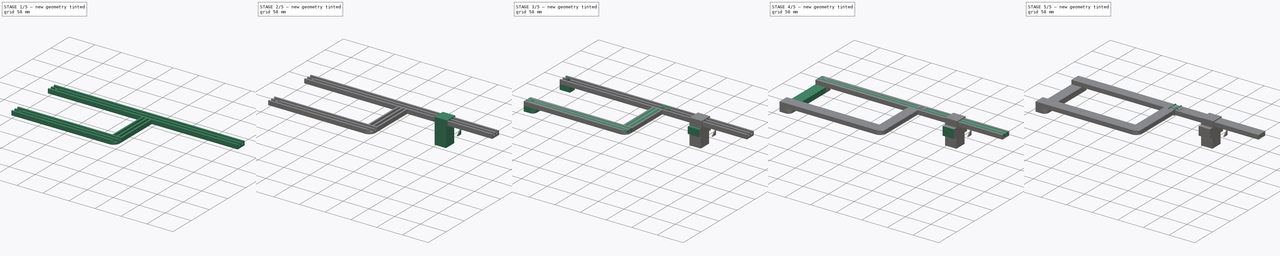
[diagram: build sequence overview — one tinted view per stage of 5, left to right]
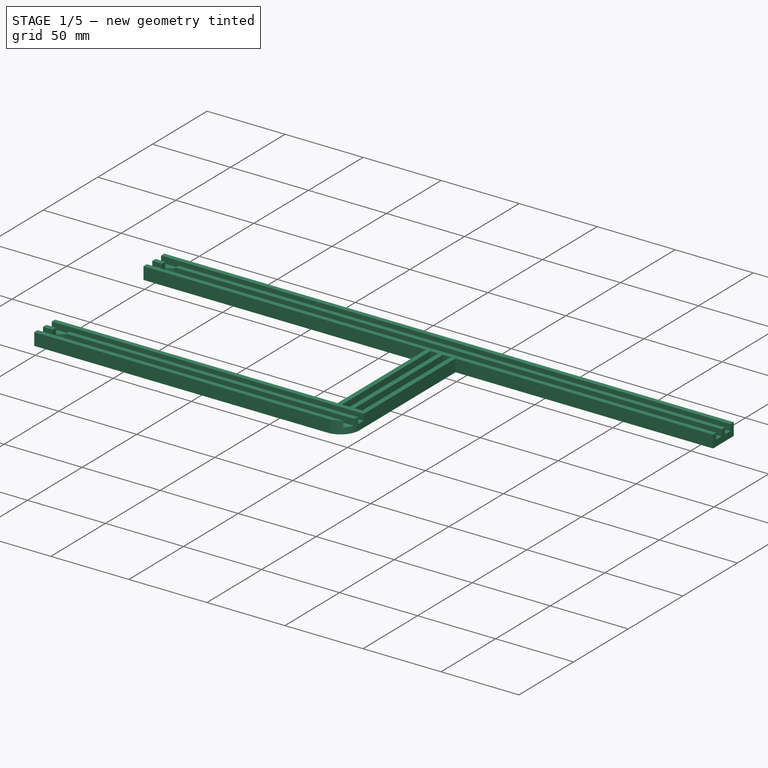
[diagram: stage 1 of 5 — iso view after this stage's code; geometry added in this stage tinted green]
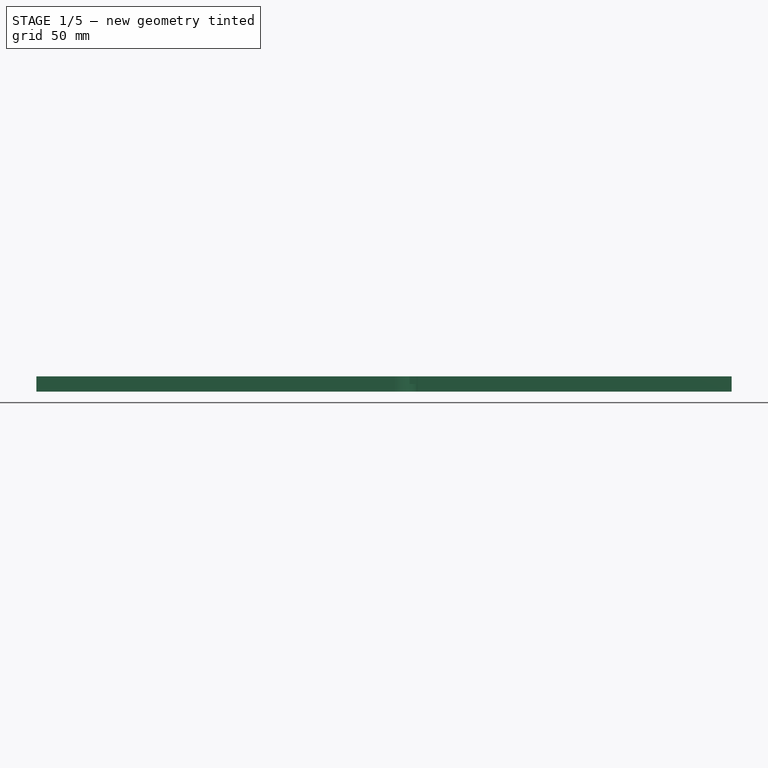
[diagram: stage 1 of 5 — front view after this stage's code; geometry added in this stage tinted green]
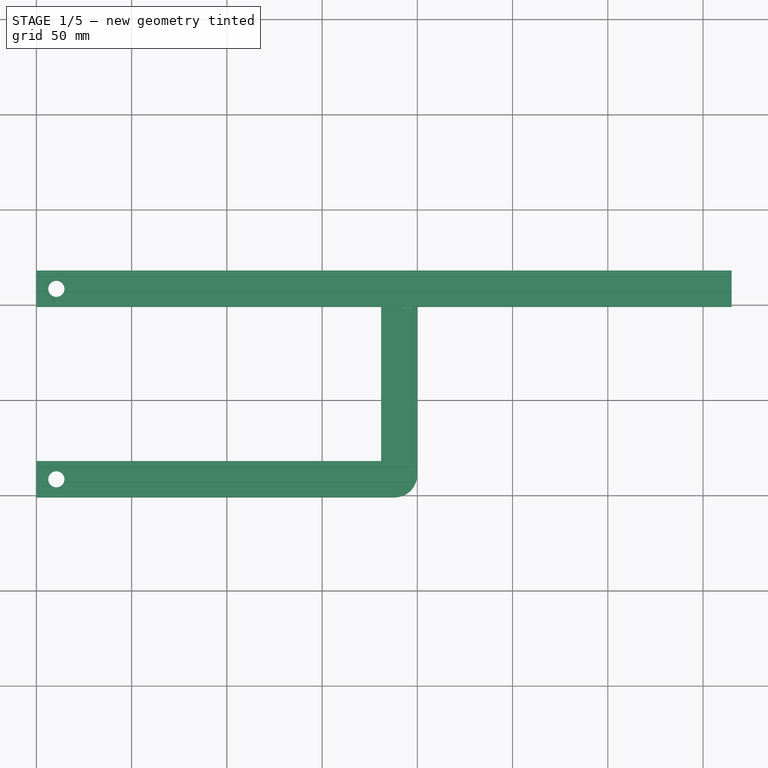
[diagram: stage 1 of 5 — top view after this stage's code; geometry added in this stage tinted green]
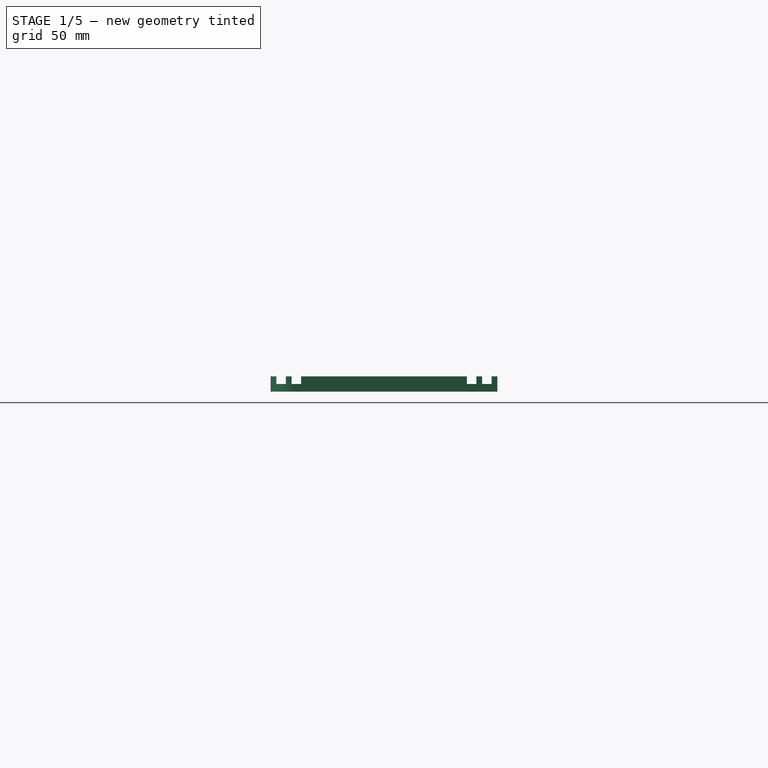
[diagram: stage 1 of 5 — right view after this stage's code; geometry added in this stage tinted green]
FCSTD DOCUMENT  (FreeCAD 0.18R16146 (Git))
Label: Webcam VESA Mount
License: All rights reserved
LicenseURL: http://en.wikipedia.org/wiki/All_rights_reserved
objects: Part::FeaturePython×78, Part::Box×45, Part::Cylinder×28, Part::Feature×26, App::DocumentObjectGroup×15, Part::Fillet×5, Part::Cut×5, Part::MultiFuse×4, Sketcher::SketchObject×4, Part::Chamfer×4, Part::Face×3, Part::Fuse×1
note: 203 computed .brp shape members not serialized (recipe doc carries the construction recipe); baked Part::Feature solids carry a one-line shape summary decoded from their .brp

FEATURE [Part::Cylinder] Cylinder
  Angle = 360
  AttacherType = Attacher::AttachEngine3D
  Height = 22
  Placement = pos=(10.5,109,-4) rot=(0,0,1;0rad)
  Radius = 2.25
FEATURE [Part::Box] Box003  label="Cube003"
  AttacherType = Attacher::AttachEngine3D
  Height = 8
  Length = 365
  Placement = pos=(0,99,10) rot=(0,0,1;0rad)
  Width = 19
FEATURE [Part::Box] Box005  label="Cube005"
  AttacherType = Attacher::AttachEngine3D
  Height = 4
  Length = 365
  Placement = pos=(0,102,14) rot=(0,0,1;0rad)
  Width = 5
FEATURE [Part::Box] Box006  label="Cube006"
  AttacherType = Attacher::AttachEngine3D
  Height = 4
  Length = 365
  Placement = pos=(0,110,14) rot=(0,0,1;0rad)
  Width = 5
FEATURE [Part::Cylinder] Cylinder002
  Angle = 360
  AttacherType = Attacher::AttachEngine3D
  Height = 21
  Placement = pos=(10.5,109,-3) rot=(0,0,1;0rad)
  Radius = 4.25
FEATURE [Part::Box] Box022  label="Cube022"
  AttacherType = Attacher::AttachEngine3D
  Height = 8
  Length = 200
  Placement = pos=(0,-1,10) rot=(0,0,1;0rad)
  Width = 19
FEATURE [Part::Box] Box023  label="Cube023"
  AttacherType = Attacher::AttachEngine3D
  Height = 4
  Length = 200
  Placement = pos=(0,10,14) rot=(0,0,1;0rad)
  Width = 5
FEATURE [Part::Box] Box024  label="Cube024"
  AttacherType = Attacher::AttachEngine3D
  Height = 4
  Length = 200
  Placement = pos=(0,2,14) rot=(0,0,1;0rad)
  Width = 5
FEATURE [Part::Box] Box025  label="Cube025"
  AttacherType = Attacher::AttachEngine3D
  Height = 4
  Length = 81
  Placement = pos=(197,18,14) rot=(0,0,1;1.5708rad)
  Width = 5
FEATURE [Part::Box] Box026  label="Cube026"
  AttacherType = Attacher::AttachEngine3D
  Height = 8
  Length = 81
  Placement = pos=(200,18,10) rot=(0,0,1;1.5708rad)
  Width = 19
FEATURE [Part::Box] Box027  label="Cube027"
  AttacherType = Attacher::AttachEngine3D
  Height = 4
  Length = 81
  Placement = pos=(189,18,14) rot=(0,0,1;1.5708rad)
  Width = 5
FEATURE [App::DocumentObjectGroup] GrExplode_Slice016  label="Exploded Slice017"
  Group = -> [Slice016_child0,Slice016_child1]
FEATURE [Part::Feature] Connect001004
  shape: bbox 44 x 24 x 64 mm, 27 faces (baked)
FEATURE [Part::Cylinder] Cylinder006
  Angle = 360
  AttacherType = Attacher::AttachEngine3D
  Height = 2.5
  Placement = pos=(4,14,10) rot=(0,0,1;0rad)
  Radius = 2
FEATURE [Part::Cylinder] Cylinder007
  Angle = 360
  AttacherType = Attacher::AttachEngine3D
  Height = 2.5
  Placement = pos=(4,3,10) rot=(0,0,1;0rad)
  Radius = 2
FEATURE [Part::Cylinder] Cylinder008
  Angle = 360
  AttacherType = Attacher::AttachEngine3D
  Height = 2.5
  Placement = pos=(15,14,10) rot=(0,0,1;0rad)
  Radius = 2
FEATURE [Part::MultiFuse] Fusion004002
  Placement = pos=(0,-100.5,0) rot=(0,0,1;0rad)
  Shapes = -> [Cylinder002,Cylinder]
FEATURE [Part::Box] Box064  label="Cube064"
  AttacherType = Attacher::AttachEngine3D
  Height = 10
  Length = 10
  Placement = pos=(190.75,98.85,9) rot=(0,0,1;0rad)
  Width = 10
FEATURE [Part::Feature] Shell012
  Placement = pos=(10,0,0) rot=(0,0,1;0rad)
  shape: bbox 7 x 21 x 10 mm, 11 faces, 0 solids (baked)
FEATURE [Part::Cylinder] Cylinder031
  Angle = 360
  AttacherType = Attacher::AttachEngine3D
  Height = 2.5
  Placement = pos=(4,103,10) rot=(0,0,1;0rad)
  Radius = 2
FEATURE [Part::Cylinder] Cylinder030
  Angle = 360
  AttacherType = Attacher::AttachEngine3D
  Height = 2.5
  Placement = pos=(4,114,10) rot=(0,0,1;0rad)
  Radius = 2
FEATURE [Part::Cylinder] Cylinder029
  Angle = 360
  AttacherType = Attacher::AttachEngine3D
  Height = 2.5
  Placement = pos=(15,103,10) rot=(0,0,1;0rad)
  Radius = 2
FEATURE [Part::FeaturePython] Slice036  # WARN: FeaturePython — macro-defined, semantics opaque (R4)
  Base = -> Box003
  Mode = 1
  Tolerance = 0
  Tools = -> [Box005,Box006,Fusion004002001,Cylinder031,Cylinder030,Cylinder029]
FEATURE [Part::FeaturePython] Slice036_child0  label="Slice036.0"  # WARN: FeaturePython — macro-defined, semantics opaque (R4)
  Base = -> Slice036
  FilterType = 1
  Invert = false
  OverrideMaxVal = 0
  WindowFrom = 80
  WindowTo = 100
  items = 0
FEATURE [App::DocumentObjectGroup] GrExplode_Slice036  label="Exploded Slice036"
  Group = -> [Slice036_child0,Slice036_child1,Slice036_child2,Slice036_child3,Slice036_child4,Slice036_child5,Slice036_child6,Slice036_child7,Slice036_child8]
FEATURE [Part::FeaturePython] Slice037  # WARN: FeaturePython — macro-defined, semantics opaque (R4)
  Base = -> Box022
  Mode = 1
  Tolerance = 0
  Tools = -> [Box023,Box024,Fusion004002,Cylinder008,Cylinder006,Cylinder007]
FEATURE [Part::FeaturePython] Slice037_child0  label="Slice037.0"  # WARN: FeaturePython — macro-defined, semantics opaque (R4)
  Base = -> Slice037
  FilterType = 1
  Invert = false
  OverrideMaxVal = 0
  WindowFrom = 80
  WindowTo = 100
  items = 0
FEATURE [App::DocumentObjectGroup] GrExplode_Slice037  label="Exploded Slice037"
  Group = -> [Slice037_child0,Slice037_child1,Slice037_child2,Slice037_child3,Slice037_child4,Slice037_child5,Slice037_child6,Slice037_child7,Slice037_child8]
FEATURE [Part::FeaturePython] Slice038  # WARN: FeaturePython — macro-defined, semantics opaque (R4)
  Base = -> Box026
  Mode = 1
  Tolerance = 0
  Tools = -> [Box027,Box025]
FEATURE [Part::FeaturePython] Slice038_child0  label="Slice038.0"  # WARN: FeaturePython — macro-defined, semantics opaque (R4)
  Base = -> Slice038
  FilterType = 1
  Invert = false
  OverrideMaxVal = 0
  WindowFrom = 80
  WindowTo = 100
  items = 0
FEATURE [Part::Fillet] Fillet004
  Base = -> Slice037_child0
  Edges = 1 edges r=12: [Edge44]
FEATURE [Part::Feature] Shell014
  shape: bbox 7 x 21 x 10 mm, 10 faces, 0 solids (baked)
FEATURE [Part::Feature] Face017
  shape: bbox 2e-07 x 2 x 10 mm, 1 faces, 0 solids (baked)
FEATURE [Part::Fuse] Fusion004002004
  Base = -> Shell014
  Tool = -> Face017
FEATURE [Part::FeaturePython] Slice039  # WARN: FeaturePython — macro-defined, semantics opaque (R4)
  Base = -> Slice036_child0
  Mode = 1
  Tolerance = 0
  Tools = -> [Shell012]
FEATURE [Part::FeaturePython] Slice039_child0  label="Slice039.0"  # WARN: FeaturePython — macro-defined, semantics opaque (R4)
  Base = -> Slice039
  FilterType = 1
  Invert = false
  OverrideMaxVal = 0
  WindowFrom = 80
  WindowTo = 100
  items = 0
FEATURE [Part::FeaturePython] Slice039_child1  label="Slice039.1"  # WARN: FeaturePython — macro-defined, semantics opaque (R4)
  Base = -> Slice039
  FilterType = 1
  Invert = false
  OverrideMaxVal = 0
  WindowFrom = 80
  WindowTo = 100
  items = 1
FEATURE [Part::FeaturePython] Slice043  # WARN: FeaturePython — macro-defined, semantics opaque (R4)
  Base = -> Slice039_child1
  Mode = 1
  Tolerance = 0
  Tools = -> [Fusion004002004]
FEATURE [Part::FeaturePython] Slice043_child0  label="Slice043.0"  # WARN: FeaturePython — macro-defined, semantics opaque (R4)
  Base = -> Slice043
  FilterType = 1
  Invert = false
  OverrideMaxVal = 0
  WindowFrom = 80
  WindowTo = 100
  items = 0
FEATURE [Part::FeaturePython] Slice043_child1  label="Slice043.1"  # WARN: FeaturePython — macro-defined, semantics opaque (R4)
  Base = -> Slice043
  FilterType = 1
  Invert = false
  OverrideMaxVal = 0
  WindowFrom = 80
  WindowTo = 100
  items = 1
FEATURE [App::DocumentObjectGroup] GrExplode_Slice043  label="Exploded Slice043"
  Group = -> [Slice043_child0,Slice043_child1]
FEATURE [Part::Cut] Cut018
  Base = -> Slice038_child0
  Tool = -> Box064
FEATURE [App::DocumentObjectGroup] GrExplode_Slice038  label="Exploded Slice038"
  Group = -> [Slice038_child1,Slice038_child2,Cut018]
FEATURE [Part::FeaturePython] Connect001017  # WARN: FeaturePython — macro-defined, semantics opaque (R4)
  Objects = -> [Slice039_child0,Cut018,Fillet004]
  Tolerance = 0
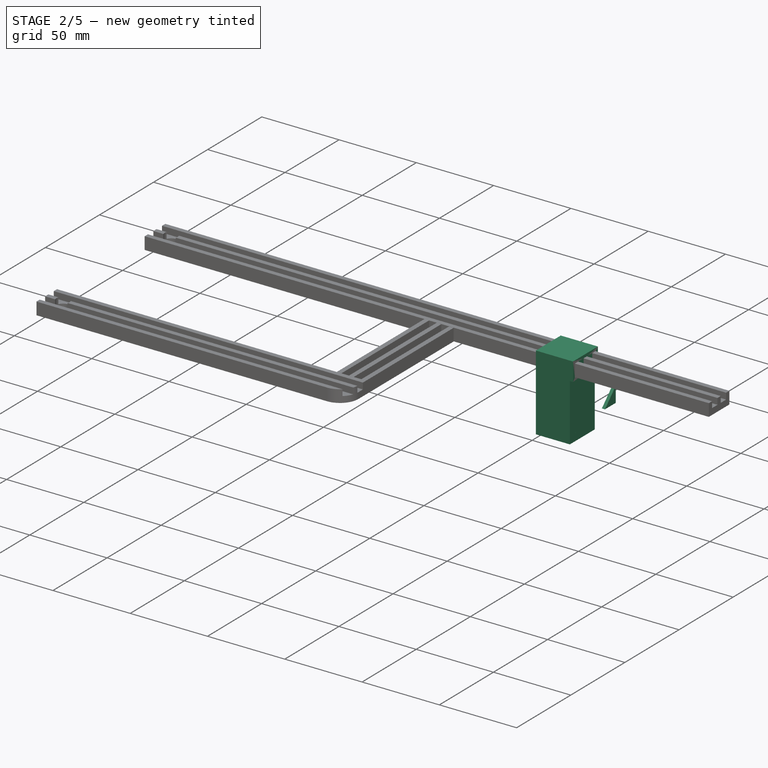
[diagram: stage 2 of 5 — iso view after this stage's code; geometry added in this stage tinted green]
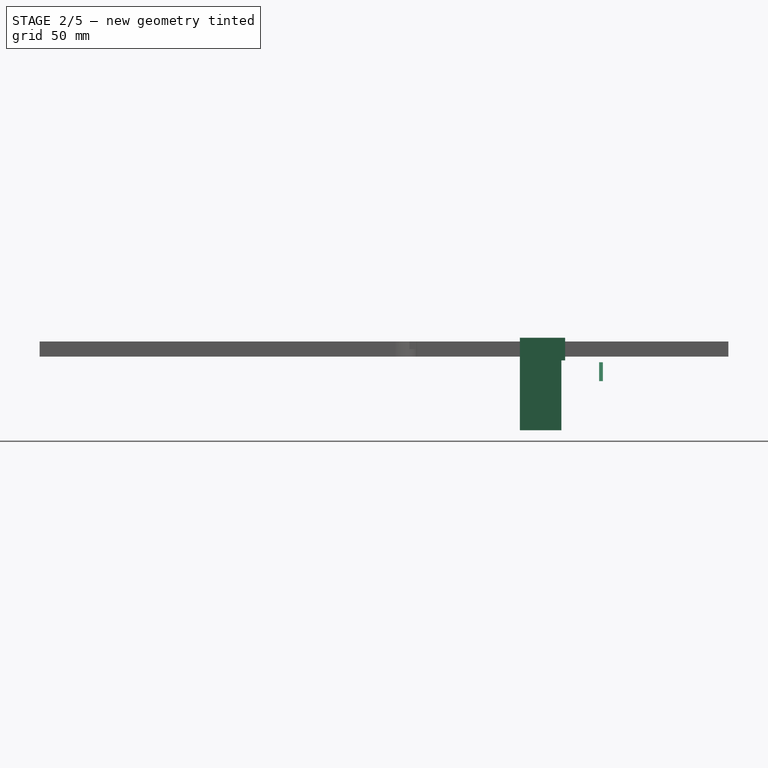
[diagram: stage 2 of 5 — front view after this stage's code; geometry added in this stage tinted green]
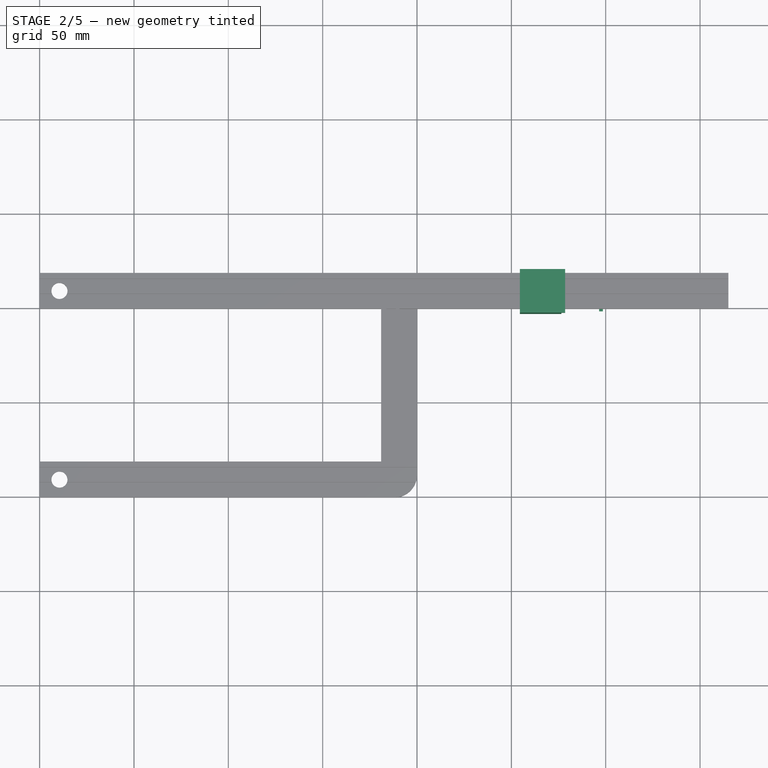
[diagram: stage 2 of 5 — top view after this stage's code; geometry added in this stage tinted green]
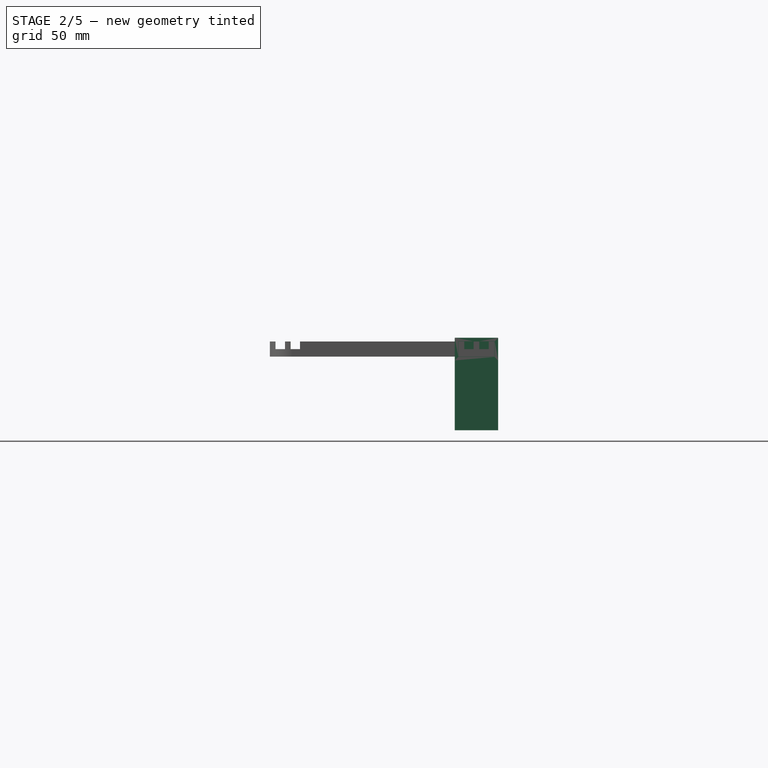
[diagram: stage 2 of 5 — right view after this stage's code; geometry added in this stage tinted green]
FEATURE [App::DocumentObjectGroup] GrExplode_Slice006  label="Exploded Slice006"
  Group = -> [Slice006_child0]
FEATURE [Part::Feature] Fusion004001  label="Fusion005"
  shape: bbox 8.5 x 8.5 x 15 mm, 6 faces (baked)
FEATURE [Part::Feature] Fusion003001  label="Fusion006"
  shape: bbox 8.5 x 8.5 x 15 mm, 6 faces (baked)
FEATURE [Sketcher::SketchObject] Sketch001
  Placement = pos=(0,0,0) rot=(1,0,0;1.5708rad)
  sketch-geometry (4):
    g0: LineSegment StartX=-8.05199 StartY=20.4397 StartZ=0 EndX=33.5352 EndY=20.4397 EndZ=0
    g1: LineSegment StartX=33.5352 StartY=20.4397 StartZ=0 EndX=33.5352 EndY=-5.92839 EndZ=0
    g2: LineSegment StartX=33.5352 StartY=-5.92839 StartZ=0 EndX=-8.05199 EndY=-5.92839 EndZ=0
    g3: LineSegment StartX=-8.05199 StartY=-5.92839 StartZ=0 EndX=-8.05199 EndY=20.4397 EndZ=0
  constraints (8):
    c: Coincident(g0,g1)
    c: Coincident(g1,g2)
    c: Coincident(g2,g3)
    c: Coincident(g3,g0)
    c: Horizontal(g0)
    c: Horizontal(g2)
    c: Vertical(g1)
    c: Vertical(g3)
FEATURE [Part::Face] Face
  FaceMakerClass = Part::FaceMakerBullseye
  Placement = pos=(0,99,0) rot=(0,0,1;0rad)
  Sources = -> [Sketch001]
FEATURE [Part::Feature] Slice_child0001  label="Slice.008"
  shape: bbox 335.5 x 118 x 14 mm, 67 faces (baked)
FEATURE [Part::Cylinder] Cylinder005
  Angle = 360
  AttacherType = Attacher::AttachEngine3D
  Height = 2
  Placement = pos=(266.5,99,-1) rot=(1,0,0;1.5708rad)
  Radius = 3.5
FEATURE [Part::Box] Box041  label="Cube041"
  AttacherType = Attacher::AttachEngine3D
  Height = 20
  Length = 20
  Placement = pos=(256.5,97,-12) rot=(0,0,1;0rad)
  Width = 2
FEATURE [Part::Box] Box042  label="Cube042"
  AttacherType = Attacher::AttachEngine3D
  Height = 10
  Length = 2
  Placement = pos=(254.5,98,-3) rot=(0,0,1;0rad)
  Width = 10
FEATURE [Part::Box] Box043  label="Cube043"
  AttacherType = Attacher::AttachEngine3D
  Height = 10
  Length = 2
  Placement = pos=(296.5,98,-3) rot=(0,0,1;0rad)
  Width = 10
FEATURE [Sketcher::SketchObject] Sketch002
  sketch-geometry (4):
    g0: LineSegment StartX=232.958 StartY=123.717 StartZ=0 EndX=299.497 EndY=123.717 EndZ=0
    g1: LineSegment StartX=299.497 StartY=123.717 StartZ=0 EndX=299.497 EndY=88.8544 EndZ=0
    g2: LineSegment StartX=299.497 StartY=88.8544 StartZ=0 EndX=232.958 EndY=88.8544 EndZ=0
    g3: LineSegment StartX=232.958 StartY=88.8544 StartZ=0 EndX=232.958 EndY=123.717 EndZ=0
  constraints (8):
    c: Coincident(g0,g1)
    c: Coincident(g1,g2)
    c: Coincident(g2,g3)
    c: Coincident(g3,g0)
    c: Horizontal(g0)
    c: Horizontal(g2)
    c: Vertical(g1)
    c: Vertical(g3)
FEATURE [Part::Face] Face001
  FaceMakerClass = Part::FaceMakerBullseye
  Placement = pos=(9,27,-74) rot=(1,0,0;0.785398rad)
  Sources = -> [Sketch002]
FEATURE [Part::FeaturePython] Slice013  # WARN: FeaturePython — macro-defined, semantics opaque (R4)
  Base = -> Box042
  Mode = 1
  Tolerance = 0
  Tools = -> [Face001]
FEATURE [Part::FeaturePython] Slice013_child1  label="Slice013.1"  # WARN: FeaturePython — macro-defined, semantics opaque (R4)
  Base = -> Slice013
  FilterType = 1
  Invert = false
  OverrideMaxVal = 0
  Placement = pos=(2,1,1) rot=(0,0,1;0rad)
  WindowFrom = 80
  WindowTo = 100
  items = 1
FEATURE [Part::Box] Box050  label="Cube050"
  AttacherType = Attacher::AttachEngine3D
  Height = 20
  Length = 19
  Placement = pos=(254.5,97,-29) rot=(0,0,1;0rad)
  Width = 23
FEATURE [Part::Box] Box051  label="Cube051"
  AttacherType = Attacher::AttachEngine3D
  Height = 3
  Length = 1
  Placement = pos=(272.5,97,-29) rot=(0,0,1;0rad)
  Width = 23
FEATURE [Part::Box] Box059  label="Cube059"
  AttacherType = Attacher::AttachEngine3D
  Height = 4
  Length = 24
  Placement = pos=(254.5,102.15,14.15) rot=(0,0,1;0rad)
  Width = 4.7
FEATURE [Part::Box] Box065  label="Cube065"
  AttacherType = Attacher::AttachEngine3D
  Height = 4
  Length = 24
  Placement = pos=(254.5,110.15,14.15) rot=(0,0,1;0rad)
  Width = 4.7
FEATURE [Part::Box] Box080  label="Cube080"
  AttacherType = Attacher::AttachEngine3D
  Height = 8.3
  Length = 22
  Placement = pos=(254.5,98.85,9.85) rot=(0,-0.447214,0.894427;0rad)
  Width = 19.3
FEATURE [Part::Box] Box077  label="Cube077"
  AttacherType = Attacher::AttachEngine3D
  Height = 4
  Length = 22
  Placement = pos=(254.5,102.15,14.15) rot=(0,0,1;0rad)
  Width = 4.7
FEATURE [Part::Box] Box078  label="Cube078"
  AttacherType = Attacher::AttachEngine3D
  Height = 4
  Length = 22
  Placement = pos=(254.5,110.15,14.15) rot=(0,0,1;0rad)
  Width = 4.7
FEATURE [Part::Box] Box083  label="Cube083"
  AttacherType = Attacher::AttachEngine3D
  Height = 3
  Length = 2
  Placement = pos=(271.5,97,-14) rot=(0,0,1;0rad)
  Width = 23
FEATURE [Part::Box] Box085  label="Cube085"
  AttacherType = Attacher::AttachEngine3D
  Height = 10
  Length = 3
  Placement = pos=(273.5,99,-24) rot=(0,0,1;0rad)
  Width = 19
FEATURE [Part::Box] Box086  label="Cube086"
  AttacherType = Attacher::AttachEngine3D
  Height = 15
  Length = 22
  Placement = pos=(254.5,98.8,-7) rot=(0,-0.447214,0.894427;0rad)
  Width = 19.4
FEATURE [Part::Box] Box079  label="Cube079"
  AttacherType = Attacher::AttachEngine3D
  Height = 49
  Length = 22
  Placement = pos=(254.5,97,-29) rot=(0,0,1;0rad)
  Width = 23
FEATURE [Part::FeaturePython] Slice042  # WARN: FeaturePython — macro-defined, semantics opaque (R4)
  Base = -> Box079
  Mode = 1
  Tolerance = 0
  Tools = -> [Box080,Box086,Box085,Box050]
FEATURE [Part::FeaturePython] Slice042_child0  label="Slice042.0"  # WARN: FeaturePython — macro-defined, semantics opaque (R4)
  Base = -> Slice042
  FilterType = 1
  Invert = false
  OverrideMaxVal = 0
  WindowFrom = 80
  WindowTo = 100
  items = 0
FEATURE [Part::FeaturePython] Slice042_child1  label="Slice042.1"  # WARN: FeaturePython — macro-defined, semantics opaque (R4)
  Base = -> Slice042
  FilterType = 1
  Invert = false
  OverrideMaxVal = 0
  WindowFrom = 80
  WindowTo = 100
  items = 1
FEATURE [Part::FeaturePython] Slice042_child2  label="Slice042.2"  # WARN: FeaturePython — macro-defined, semantics opaque (R4)
  Base = -> Slice042
  FilterType = 1
  Invert = false
  OverrideMaxVal = 0
  WindowFrom = 80
  WindowTo = 100
  items = 2
FEATURE [Part::FeaturePython] Slice042_child3  label="Slice042.3"  # WARN: FeaturePython — macro-defined, semantics opaque (R4)
  Base = -> Slice042
  FilterType = 1
  Invert = false
  OverrideMaxVal = 0
  WindowFrom = 80
  WindowTo = 100
  items = 3
FEATURE [Part::FeaturePython] Slice042_child4  label="Slice042.4"  # WARN: FeaturePython — macro-defined, semantics opaque (R4)
  Base = -> Slice042
  FilterType = 1
  Invert = false
  OverrideMaxVal = 0
  WindowFrom = 80
  WindowTo = 100
  items = 4
FEATURE [App::DocumentObjectGroup] GrExplode_Slice042  label="Exploded Slice042"
  Group = -> [Slice042_child0,Slice042_child1,Slice042_child2,Slice042_child3,Slice042_child4]
FEATURE [Part::FeaturePython] Connect001016  # WARN: FeaturePython — macro-defined, semantics opaque (R4)
  Objects = -> [Box077,Box078,Box083,Box051,Slice042_child1]
  Tolerance = 0
FEATURE [Part::Box] Box087  label="Cube087"
  AttacherType = Attacher::AttachEngine3D
  Height = 8.3
  Length = 24
  Placement = pos=(254.5,98.85,9.85) rot=(0,-0.447214,0.894427;0rad)
  Width = 19.3
FEATURE [Part::Box] Box088  label="Cube088"
  AttacherType = Attacher::AttachEngine3D
  Height = 12
  Length = 24
  Placement = pos=(254.5,97,8) rot=(0,0,1;0rad)
  Width = 23
FEATURE [Part::FeaturePython] Slice014  # WARN: FeaturePython — macro-defined, semantics opaque (R4)
  Base = -> Box043
  Mode = 1
  Tolerance = 0
  Tools = -> [Face001]
FEATURE [Part::FeaturePython] Slice014_child0  label="Slice014.0"  # WARN: FeaturePython — macro-defined, semantics opaque (R4)
  Base = -> Slice014
  FilterType = 1
  Invert = false
  OverrideMaxVal = 0
  WindowFrom = 80
  WindowTo = 100
  items = 0
FEATURE [Part::FeaturePython] Slice014_child1  label="Slice014.1"  # WARN: FeaturePython — macro-defined, semantics opaque (R4)
  Base = -> Slice014
  FilterType = 1
  Invert = false
  OverrideMaxVal = 0
  Placement = pos=(-22,1,1) rot=(0,0,1;0rad)
  WindowFrom = 80
  WindowTo = 100
  items = 1
FEATURE [App::DocumentObjectGroup] GrExplode_Slice014  label="Exploded Slice015"
  Group = -> [Slice014_child0,Slice014_child1]
FEATURE [Part::Fillet] Fillet
  Base = -> Box041
  Edges = 2 edges r=6: [Edge4,Edge8]
FEATURE [Part::Cut] Cut
  Base = -> Fillet
  Tool = -> Cylinder005
FEATURE [Part::Cut] Cut017
  Base = -> Box088
  Tool = -> Box087
FEATURE [Part::FeaturePython] Connect  # WARN: FeaturePython — macro-defined, semantics opaque (R4)
  Objects = -> [Slice014_child1,Box065,Cut017,Box059,Cut,Slice013_child1]
  Tolerance = 0
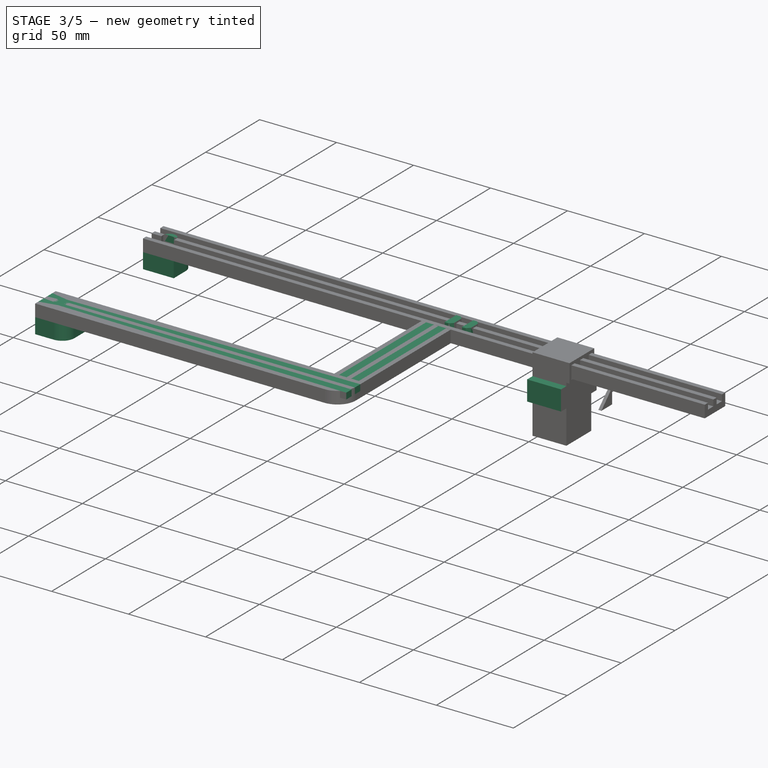
[diagram: stage 3 of 5 — iso view after this stage's code; geometry added in this stage tinted green]
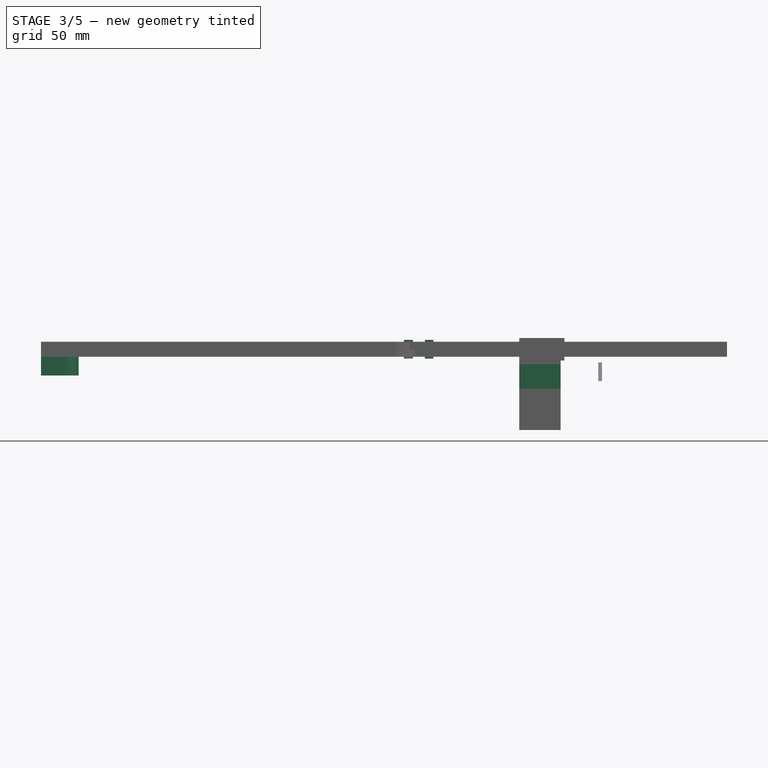
[diagram: stage 3 of 5 — front view after this stage's code; geometry added in this stage tinted green]
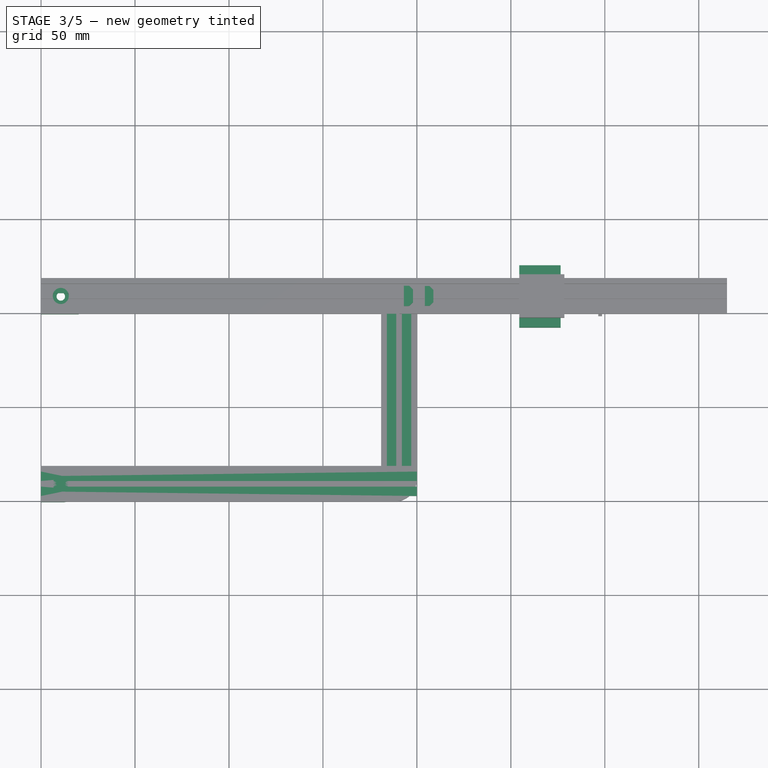
[diagram: stage 3 of 5 — top view after this stage's code; geometry added in this stage tinted green]
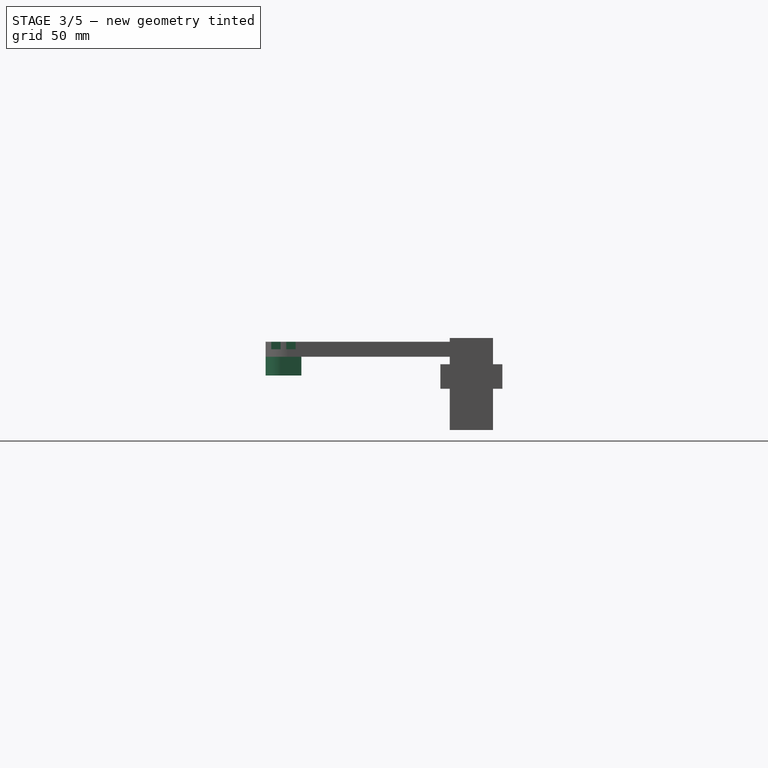
[diagram: stage 3 of 5 — right view after this stage's code; geometry added in this stage tinted green]
FEATURE [Part::Cylinder] Cylinder023
  Angle = 360
  AttacherType = Attacher::AttachEngine3D
  Height = 2
  Placement = pos=(15,103,10) rot=(0,0,1;0rad)
  Radius = 1.75
FEATURE [Part::Cylinder] Cylinder024
  Angle = 360
  AttacherType = Attacher::AttachEngine3D
  Height = 2
  Placement = pos=(4,103,10) rot=(0,0,1;0rad)
  Radius = 1.75
FEATURE [Part::Cylinder] Cylinder025
  Angle = 360
  AttacherType = Attacher::AttachEngine3D
  Height = 2
  Placement = pos=(4,114,10) rot=(0,0,1;0rad)
  Radius = 1.75
FEATURE [Part::FeaturePython] Slice036_child5  label="Slice036.5"  # WARN: FeaturePython — macro-defined, semantics opaque (R4)
  Base = -> Slice036
  FilterType = 1
  Invert = false
  OverrideMaxVal = 0
  WindowFrom = 80
  WindowTo = 100
  items = 5
FEATURE [Part::FeaturePython] Slice036_child6  label="Slice036.6"  # WARN: FeaturePython — macro-defined, semantics opaque (R4)
  Base = -> Slice036
  FilterType = 1
  Invert = false
  OverrideMaxVal = 0
  WindowFrom = 80
  WindowTo = 100
  items = 6
FEATURE [Part::FeaturePython] Slice036_child7  label="Slice036.7"  # WARN: FeaturePython — macro-defined, semantics opaque (R4)
  Base = -> Slice036
  FilterType = 1
  Invert = false
  OverrideMaxVal = 0
  WindowFrom = 80
  WindowTo = 100
  items = 7
FEATURE [Part::FeaturePython] Slice036_child8  label="Slice036.8"  # WARN: FeaturePython — macro-defined, semantics opaque (R4)
  Base = -> Slice036
  FilterType = 1
  Invert = false
  OverrideMaxVal = 0
  WindowFrom = 80
  WindowTo = 100
  items = 8
FEATURE [Part::FeaturePython] Slice037_child1  label="Slice037.1"  # WARN: FeaturePython — macro-defined, semantics opaque (R4)
  Base = -> Slice037
  FilterType = 1
  Invert = false
  OverrideMaxVal = 0
  WindowFrom = 80
  WindowTo = 100
  items = 1
FEATURE [Part::FeaturePython] Slice037_child2  label="Slice037.2"  # WARN: FeaturePython — macro-defined, semantics opaque (R4)
  Base = -> Slice037
  FilterType = 1
  Invert = false
  OverrideMaxVal = 0
  WindowFrom = 80
  WindowTo = 100
  items = 2
FEATURE [Part::FeaturePython] Slice037_child3  label="Slice037.3"  # WARN: FeaturePython — macro-defined, semantics opaque (R4)
  Base = -> Slice037
  FilterType = 1
  Invert = false
  OverrideMaxVal = 0
  WindowFrom = 80
  WindowTo = 100
  items = 3
FEATURE [Part::FeaturePython] Slice037_child4  label="Slice037.4"  # WARN: FeaturePython — macro-defined, semantics opaque (R4)
  Base = -> Slice037
  FilterType = 1
  Invert = false
  OverrideMaxVal = 0
  WindowFrom = 80
  WindowTo = 100
  items = 4
FEATURE [Part::FeaturePython] Slice037_child5  label="Slice037.5"  # WARN: FeaturePython — macro-defined, semantics opaque (R4)
  Base = -> Slice037
  FilterType = 1
  Invert = false
  OverrideMaxVal = 0
  WindowFrom = 80
  WindowTo = 100
  items = 5
FEATURE [Part::FeaturePython] Slice037_child6  label="Slice037.6"  # WARN: FeaturePython — macro-defined, semantics opaque (R4)
  Base = -> Slice037
  FilterType = 1
  Invert = false
  OverrideMaxVal = 0
  WindowFrom = 80
  WindowTo = 100
  items = 6
FEATURE [Part::FeaturePython] Slice037_child7  label="Slice037.7"  # WARN: FeaturePython — macro-defined, semantics opaque (R4)
  Base = -> Slice037
  FilterType = 1
  Invert = false
  OverrideMaxVal = 0
  WindowFrom = 80
  WindowTo = 100
  items = 7
FEATURE [Part::FeaturePython] Slice037_child8  label="Slice037.8"  # WARN: FeaturePython — macro-defined, semantics opaque (R4)
  Base = -> Slice037
  FilterType = 1
  Invert = false
  OverrideMaxVal = 0
  WindowFrom = 80
  WindowTo = 100
  items = 8
FEATURE [Part::FeaturePython] Slice038_child1  label="Slice038.1"  # WARN: FeaturePython — macro-defined, semantics opaque (R4)
  Base = -> Slice038
  FilterType = 1
  Invert = false
  OverrideMaxVal = 0
  WindowFrom = 80
  WindowTo = 100
  items = 1
FEATURE [Part::FeaturePython] Slice038_child2  label="Slice038.2"  # WARN: FeaturePython — macro-defined, semantics opaque (R4)
  Base = -> Slice038
  FilterType = 1
  Invert = false
  OverrideMaxVal = 0
  WindowFrom = 80
  WindowTo = 100
  items = 2
FEATURE [Part::Feature] Shell013
  Placement = pos=(10,0,0) rot=(0,0,1;0rad)
  shape: bbox 7 x 21 x 10 mm, 11 faces, 0 solids (baked)
FEATURE [Part::Box] Box074  label="Cube074"
  AttacherType = Attacher::AttachEngine3D
  Height = 10
  Length = 4.8
  Placement = pos=(193.1,103.1,9) rot=(0,0,1;0rad)
  Width = 10.8
FEATURE [Part::Box] Box075  label="Cube075"
  AttacherType = Attacher::AttachEngine3D
  Height = 10
  Length = 4.5
  Placement = pos=(204.25,103.25,9) rot=(0,0,1;0rad)
  Width = 10.5
FEATURE [Part::Chamfer] Chamfer007
  Base = -> Box075
  Edges = 2 edges r=2: [Edge5,Edge7]
FEATURE [Part::Chamfer] Chamfer008
  Base = -> Box074
  Edges = 2 edges r=2: [Edge5,Edge7]
FEATURE [App::DocumentObjectGroup] GrExplode_Slice039  label="Exploded Slice039"
  Group = -> [Slice039_child0,Slice039_child1]
FEATURE [Part::Cylinder] Cylinder032
  Angle = 360
  AttacherType = Attacher::AttachEngine3D
  Height = 2
  Placement = pos=(4,14,10) rot=(0,0,1;0rad)
  Radius = 1.75
FEATURE [Part::Cylinder] Cylinder033
  Angle = 360
  AttacherType = Attacher::AttachEngine3D
  Height = 2
  Placement = pos=(15,14,10) rot=(0,0,1;0rad)
  Radius = 1.75
FEATURE [Part::Cylinder] Cylinder034
  Angle = 360
  AttacherType = Attacher::AttachEngine3D
  Height = 2
  Placement = pos=(4,3,10) rot=(0,0,1;0rad)
  Radius = 1.75
FEATURE [Part::Feature] Fusion004002005
  Placement = pos=(0,-0.5,4) rot=(0,0,1;0rad)
  shape: bbox 8.5 x 8.5 x 22 mm, 6 faces (baked)
FEATURE [Part::Feature] Fusion004002006
  Placement = pos=(0,-100.5,4) rot=(0,0,1;0rad)
  shape: bbox 8.5 x 8.5 x 22 mm, 6 faces (baked)
FEATURE [Part::Feature] Face018
  Placement = pos=(0,99,0) rot=(0,0,1;0rad)
  shape: bbox 41.59 x 2e-07 x 26.37 mm, 1 faces, 0 solids (baked)
FEATURE [Part::Feature] Face002001  label="Face019"
  Placement = pos=(0,18,0) rot=(0,0,1;0rad)
  shape: bbox 41.59 x 2e-07 x 26.37 mm, 1 faces, 0 solids (baked)
FEATURE [Part::Box] Box076  label="Cube076"
  AttacherType = Attacher::AttachEngine3D
  Height = 10
  Length = 20
  Placement = pos=(0,-1,0) rot=(0,0,1;0rad)
  Width = 119
FEATURE [Part::Fillet] Fillet005
  Base = -> Box076
  Edges = 2 edges r=8: [Edge5,Edge7]
FEATURE [Part::FeaturePython] Slice041  # WARN: FeaturePython — macro-defined, semantics opaque (R4)
  Base = -> Fillet005
  Mode = 1
  Tolerance = 0
  Tools = -> [Face002001,Face018]
FEATURE [Part::FeaturePython] Slice041_child0  label="Slice041.0"  # WARN: FeaturePython — macro-defined, semantics opaque (R4)
  Base = -> Slice041
  FilterType = 1
  Invert = false
  OverrideMaxVal = 0
  WindowFrom = 80
  WindowTo = 100
  items = 0
FEATURE [Part::FeaturePython] Slice041_child2  label="Slice041.2"  # WARN: FeaturePython — macro-defined, semantics opaque (R4)
  Base = -> Slice041
  FilterType = 1
  Invert = false
  OverrideMaxVal = 0
  WindowFrom = 80
  WindowTo = 100
  items = 2
FEATURE [Part::Box] Box082  label="Cube082"
  AttacherType = Attacher::AttachEngine3D
  Height = 13
  Length = 22
  Placement = pos=(254.5,92,-7) rot=(0,0,1;0rad)
  Width = 33
FEATURE [Part::Cut] Cut015
  Base = -> Slice041_child2
  Tool = -> Fusion004002005
FEATURE [Part::MultiFuse] Fusion004002007  label="Mount Block Upper"
  Shapes = -> [Cylinder023,Cylinder024,Cylinder025,Cut015]
FEATURE [Part::Cut] Cut016
  Base = -> Slice041_child0
  Tool = -> Fusion004002006
FEATURE [Part::MultiFuse] Fusion004002008  label="Mount Block Lower"
  Shapes = -> [Cut016,Cylinder034,Cylinder033,Cylinder032]
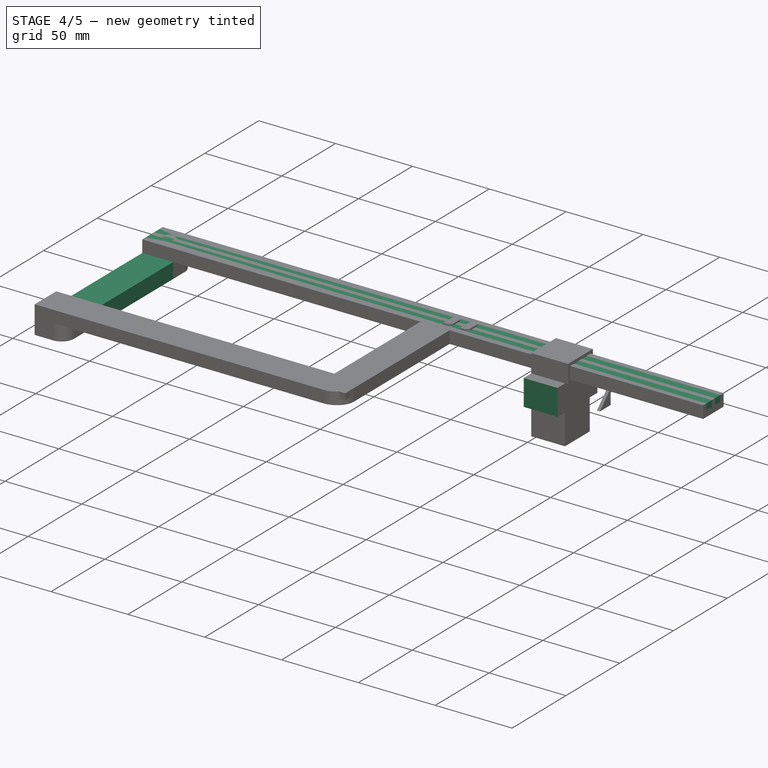
[diagram: stage 4 of 5 — iso view after this stage's code; geometry added in this stage tinted green]
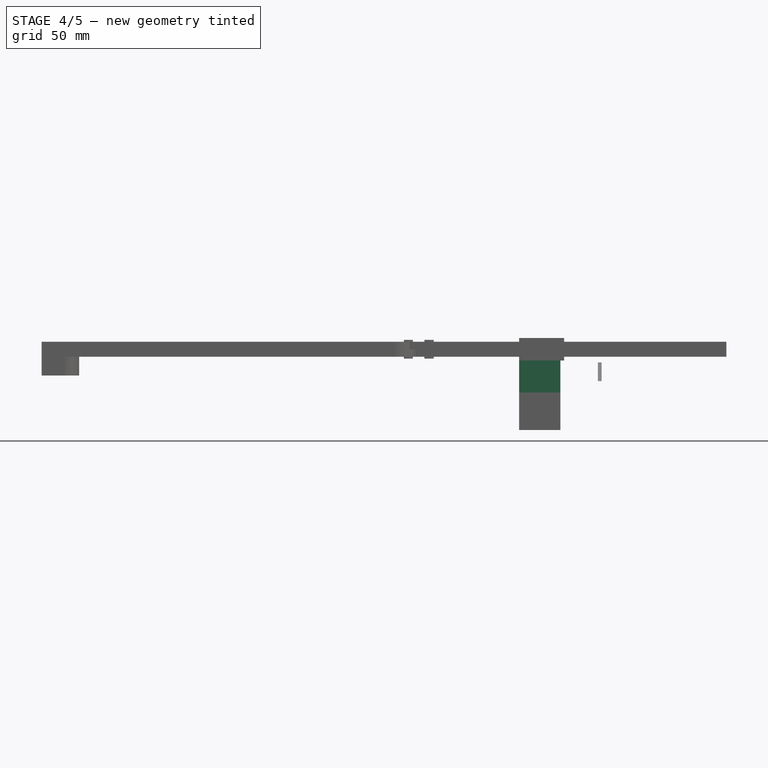
[diagram: stage 4 of 5 — front view after this stage's code; geometry added in this stage tinted green]
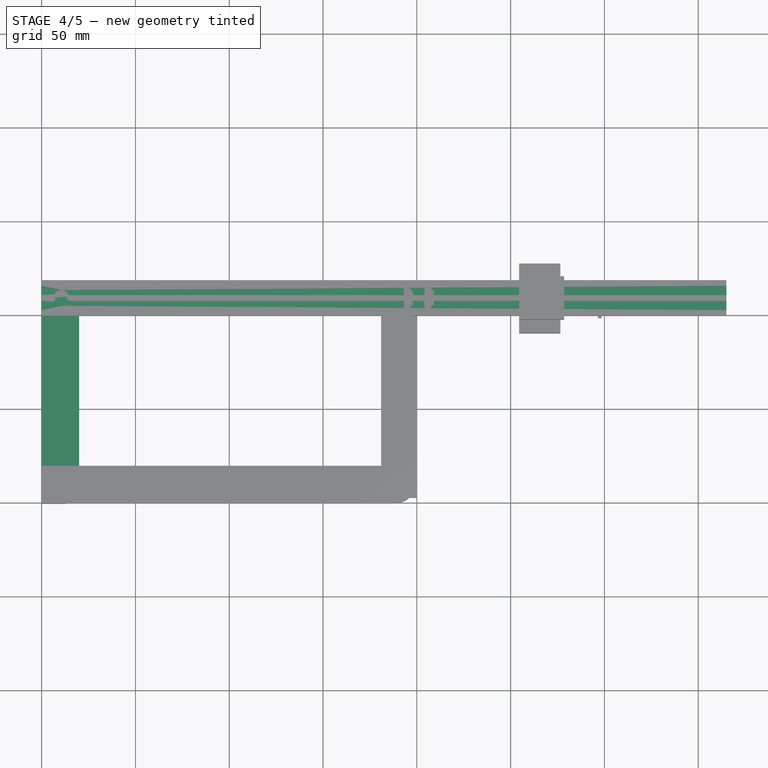
[diagram: stage 4 of 5 — top view after this stage's code; geometry added in this stage tinted green]
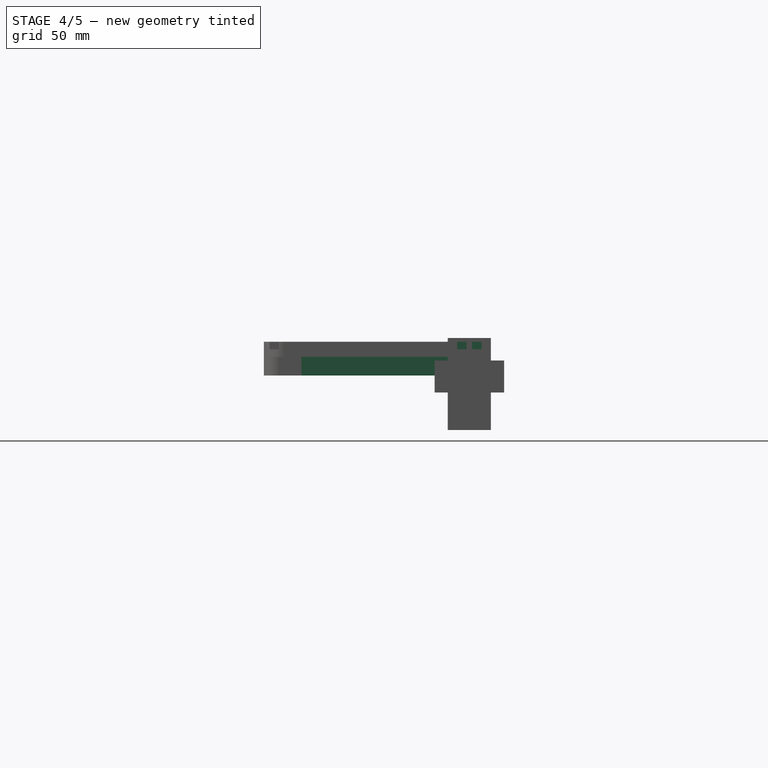
[diagram: stage 4 of 5 — right view after this stage's code; geometry added in this stage tinted green]
FEATURE [Part::Box] Box  label="Cube"
  AttacherType = Attacher::AttachEngine3D
  Height = 10
  Length = 20
  Width = 118
FEATURE [Part::Box] Box021  label="Cube021"
  AttacherType = Attacher::AttachEngine3D
  Height = 10
  Length = 5
  Placement = pos=(204,103,9) rot=(0,0,1;0rad)
  Width = 11
FEATURE [Part::Box] Box032  label="Cube032"
  AttacherType = Attacher::AttachEngine3D
  Height = 10
  Length = 4.5
  Placement = pos=(204.25,103.25,9) rot=(0,0,1;0rad)
  Width = 10.5
FEATURE [App::DocumentObjectGroup] GrExplode_Slice013001  label="Exploded Slice014"
  Group = -> [Slice013_child0,Slice013_child1]
FEATURE [Part::Feature] Face002
  Placement = pos=(0,19,0) rot=(0,0,1;0rad)
  shape: bbox 41.59 x 2e-07 x 26.37 mm, 1 faces, 0 solids (baked)
FEATURE [Sketcher::SketchObject] Sketch003
  sketch-geometry (4):
    g0: LineSegment StartX=-8.22896 StartY=21.6784 StartZ=0 EndX=26.1026 EndY=21.6784 EndZ=0
    g1: LineSegment StartX=26.1026 StartY=21.6784 StartZ=0 EndX=26.1026 EndY=-7.87502 EndZ=0
    g2: LineSegment StartX=26.1026 StartY=-7.87502 StartZ=0 EndX=-8.22896 EndY=-7.87502 EndZ=0
    g3: LineSegment StartX=-8.22896 StartY=-7.87502 StartZ=0 EndX=-8.22896 EndY=21.6784 EndZ=0
  constraints (8):
    c: Coincident(g0,g1)
    c: Coincident(g1,g2)
    c: Coincident(g2,g3)
    c: Coincident(g3,g0)
    c: Horizontal(g0)
    c: Horizontal(g2)
    c: Vertical(g1)
    c: Vertical(g3)
FEATURE [Part::Face] Face003
  FaceMakerClass = Part::FaceMakerBullseye
  Placement = pos=(0,100,10) rot=(0,0,1;0rad)
  Sources = -> [Sketch003]
FEATURE [Part::FeaturePython] Slice016  # WARN: FeaturePython — macro-defined, semantics opaque (R4)
  Mode = 1
  Tolerance = 0
  Tools = -> [Face003]
FEATURE [Part::FeaturePython] Slice016_child1  label="Slice016.1"  # WARN: FeaturePython — macro-defined, semantics opaque (R4)
  Base = -> Slice016
  FilterType = 1
  Invert = false
  OverrideMaxVal = 0
  WindowFrom = 80
  WindowTo = 100
  items = 1
FEATURE [Part::FeaturePython] Connect001005  # WARN: FeaturePython — macro-defined, semantics opaque (R4)
  Objects = -> [Cylinder010,Cylinder009,Cylinder011]
  Tolerance = 0
FEATURE [Part::Cylinder] Cylinder012
  Angle = 360
  AttacherType = Attacher::AttachEngine3D
  Height = 4.5
  Placement = pos=(4,114,8) rot=(0,0,1;0rad)
  Radius = 2
FEATURE [Part::Cylinder] Cylinder013
  Angle = 360
  AttacherType = Attacher::AttachEngine3D
  Height = 4.5
  Placement = pos=(4,103,8) rot=(0,0,1;0rad)
  Radius = 2
FEATURE [Part::Cylinder] Cylinder014
  Angle = 360
  AttacherType = Attacher::AttachEngine3D
  Height = 4.5
  Placement = pos=(16,103,8) rot=(0,0,1;0rad)
  Radius = 2
FEATURE [Part::FeaturePython] Slice025  # WARN: FeaturePython — macro-defined, semantics opaque (R4)
  Base = -> Slice016_child1
  Mode = 1
  Tolerance = 0
  Tools = -> [Cylinder014,Cylinder013,Cylinder012]
FEATURE [Part::FeaturePython] Slice025_child3  label="Slice025.3"  # WARN: FeaturePython — macro-defined, semantics opaque (R4)
  Base = -> Slice025
  FilterType = 1
  Invert = false
  OverrideMaxVal = 0
  WindowFrom = 80
  WindowTo = 100
  items = 3
FEATURE [App::DocumentObjectGroup] GrExplode_Slice025  label="Delete Me"
  Group = -> [Slice025_child0,Slice025_child1,Slice025_child2,Slice025_child3]
FEATURE [Part::Cylinder] Cylinder020
  Angle = 360
  AttacherType = Attacher::AttachEngine3D
  Height = 4.5
  Placement = pos=(16,103,8) rot=(0,0,1;0rad)
  Radius = 2
FEATURE [Part::Box] Box049  label="Cube049"
  AttacherType = Attacher::AttachEngine3D
  Height = 17
  Length = 22
  Placement = pos=(254.5,90,-9) rot=(0,0,1;0rad)
  Width = 37
FEATURE [Part::Box] Box052  label="Cube052"
  AttacherType = Attacher::AttachEngine3D
  Height = 3
  Length = 4
  Placement = pos=(272.5,104,-29) rot=(0,0,1;0rad)
  Width = 8.5
FEATURE [Part::Feature] Fusion004002001  label="Fusion004003"
  Placement = pos=(0,-0.5,0) rot=(0,0,1;0rad)
  shape: bbox 8.5 x 8.5 x 22 mm, 6 faces (baked)
FEATURE [Part::Feature] Fusion004002002  label="Fusion004004"
  Placement = pos=(0,0,4) rot=(0,0,1;0rad)
  shape: bbox 8.5 x 8.5 x 22 mm, 6 faces (baked)
FEATURE [Part::Feature] Fusion004002003  label="Fusion004005"
  Placement = pos=(0,-100,4) rot=(0,0,1;0rad)
  shape: bbox 8.5 x 8.5 x 22 mm, 6 faces (baked)
FEATURE [Part::Fillet] Fillet002
  Edges = 1 edges r=10: [Edge44]
FEATURE [Part::Fillet] Fillet003
  Base = -> Box
  Edges = 2 edges r=8: [Edge5,Edge7]
FEATURE [Part::FeaturePython] Slice033  # WARN: FeaturePython — macro-defined, semantics opaque (R4)
  Base = -> Fillet003
  Mode = 1
  Tolerance = 0
  Tools = -> [Face,Face002,Fusion004002003,Fusion004002002]
FEATURE [Part::FeaturePython] Slice033_child0  label="Slice033.0"  # WARN: FeaturePython — macro-defined, semantics opaque (R4)
  Base = -> Slice033
  FilterType = 1
  Invert = false
  OverrideMaxVal = 0
  WindowFrom = 80
  WindowTo = 100
  items = 0
FEATURE [Part::FeaturePython] Slice033_child1  label="Slice033.1"  # WARN: FeaturePython — macro-defined, semantics opaque (R4)
  Base = -> Slice033
  FilterType = 1
  Invert = false
  OverrideMaxVal = 0
  WindowFrom = 80
  WindowTo = 100
  items = 1
FEATURE [Part::FeaturePython] Slice033_child2  label="Slice033.2"  # WARN: FeaturePython — macro-defined, semantics opaque (R4)
  Base = -> Slice033
  FilterType = 1
  Invert = false
  OverrideMaxVal = 0
  WindowFrom = 80
  WindowTo = 100
  items = 2
FEATURE [Part::FeaturePython] Slice033_child3  label="Slice033.3"  # WARN: FeaturePython — macro-defined, semantics opaque (R4)
  Base = -> Slice033
  FilterType = 1
  Invert = false
  OverrideMaxVal = 0
  WindowFrom = 80
  WindowTo = 100
  items = 3
FEATURE [Part::FeaturePython] Slice033_child4  label="Slice033.4"  # WARN: FeaturePython — macro-defined, semantics opaque (R4)
  Base = -> Slice033
  FilterType = 1
  Invert = false
  OverrideMaxVal = 0
  Placement = pos=(0,-0.5,0) rot=(0,0,1;0rad)
  WindowFrom = 80
  WindowTo = 100
  items = 4
FEATURE [App::DocumentObjectGroup] GrExplode_Slice033  label="Exploded Slice034"
  Group = -> [Slice033_child0,Slice033_child1,Slice033_child2,Slice033_child3,Slice033_child4]
FEATURE [Part::Chamfer] Chamfer
  Base = -> Box021
  Edges = 2 edges r=2: [Edge5,Edge7]
FEATURE [Part::Chamfer] Chamfer005
  Base = -> Box032
  Edges = 2 edges r=2: [Edge5,Edge7]
FEATURE [Part::Feature] Shell
  Placement = pos=(10,0,0) rot=(0,0,1;0rad)
  shape: bbox 7 x 21 x 10 mm, 11 faces, 0 solids (baked)
FEATURE [Part::Feature] Shell010
  Placement = pos=(10,0,0) rot=(0,0,1;0rad)
  shape: bbox 7 x 21 x 10 mm, 11 faces, 0 solids (baked)
FEATURE [Part::FeaturePython] Slice035  # WARN: FeaturePython — macro-defined, semantics opaque (R4)
  Mode = 1
  Tolerance = 0
  Tools = -> [Shell]
FEATURE [Part::FeaturePython] Slice035_child1  label="Slice035.1"  # WARN: FeaturePython — macro-defined, semantics opaque (R4)
  Base = -> Slice035
  FilterType = 1
  Invert = false
  OverrideMaxVal = 0
  WindowFrom = 80
  WindowTo = 100
  items = 1
FEATURE [Part::Cylinder] Cylinder026
  Angle = 360
  AttacherType = Attacher::AttachEngine3D
  Height = 2
  Placement = pos=(4,15,10) rot=(0,0,1;0rad)
  Radius = 1.5
FEATURE [Part::Cylinder] Cylinder027
  Angle = 360
  AttacherType = Attacher::AttachEngine3D
  Height = 2
  Placement = pos=(4,4,10) rot=(0,0,1;0rad)
  Radius = 1.5
FEATURE [Part::Cylinder] Cylinder028
  Angle = 360
  AttacherType = Attacher::AttachEngine3D
  Height = 2
  Placement = pos=(16,15,10) rot=(0,0,1;0rad)
  Radius = 1.5
FEATURE [Part::FeaturePython] Connect001013  # WARN: FeaturePython — macro-defined, semantics opaque (R4)
  Objects = -> [Slice033_child0,Cylinder027,Cylinder026,Cylinder028]
  Tolerance = 0
FEATURE [Part::FeaturePython] Slice036_child1  label="Slice036.1"  # WARN: FeaturePython — macro-defined, semantics opaque (R4)
  Base = -> Slice036
  FilterType = 1
  Invert = false
  OverrideMaxVal = 0
  WindowFrom = 80
  WindowTo = 100
  items = 1
FEATURE [Part::FeaturePython] Slice036_child2  label="Slice036.2"  # WARN: FeaturePython — macro-defined, semantics opaque (R4)
  Base = -> Slice036
  FilterType = 1
  Invert = false
  OverrideMaxVal = 0
  WindowFrom = 80
  WindowTo = 100
  items = 2
FEATURE [Part::FeaturePython] Slice036_child3  label="Slice036.3"  # WARN: FeaturePython — macro-defined, semantics opaque (R4)
  Base = -> Slice036
  FilterType = 1
  Invert = false
  OverrideMaxVal = 0
  WindowFrom = 80
  WindowTo = 100
  items = 3
FEATURE [Part::FeaturePython] Slice036_child4  label="Slice036.4"  # WARN: FeaturePython — macro-defined, semantics opaque (R4)
  Base = -> Slice036
  FilterType = 1
  Invert = false
  OverrideMaxVal = 0
  WindowFrom = 80
  WindowTo = 100
  items = 4
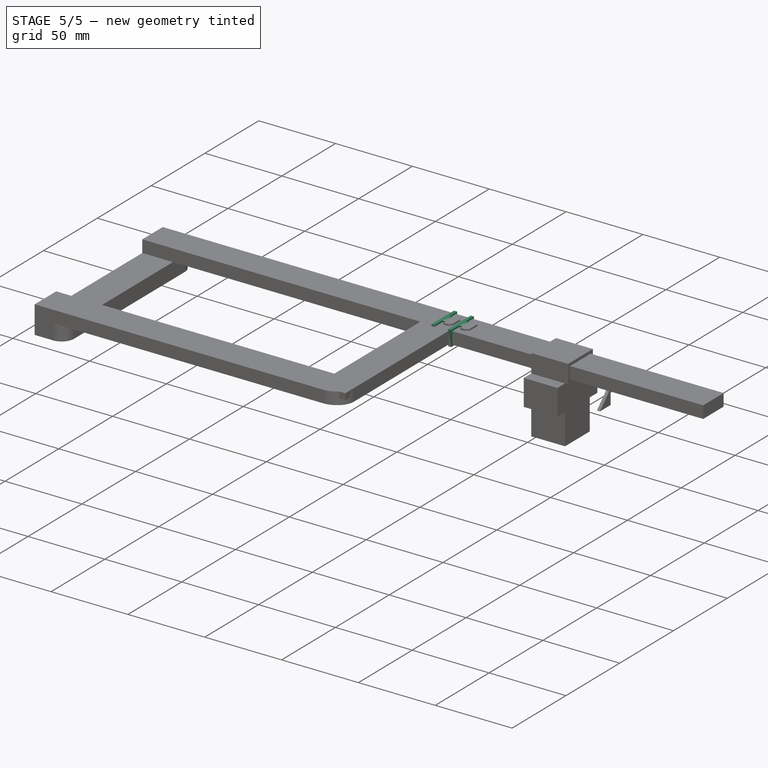
[diagram: stage 5 of 5 — iso view after this stage's code; geometry added in this stage tinted green]
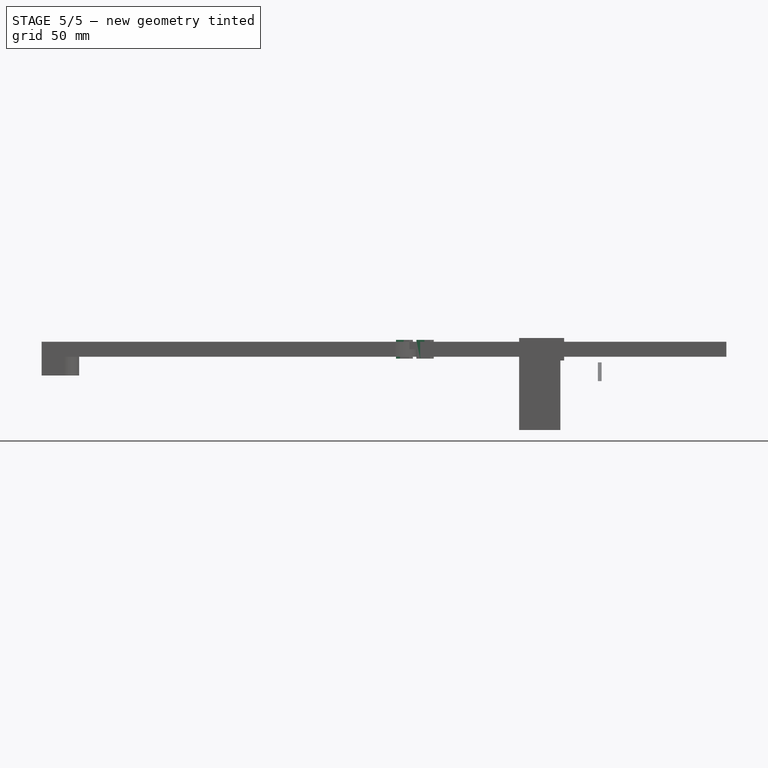
[diagram: stage 5 of 5 — front view after this stage's code; geometry added in this stage tinted green]
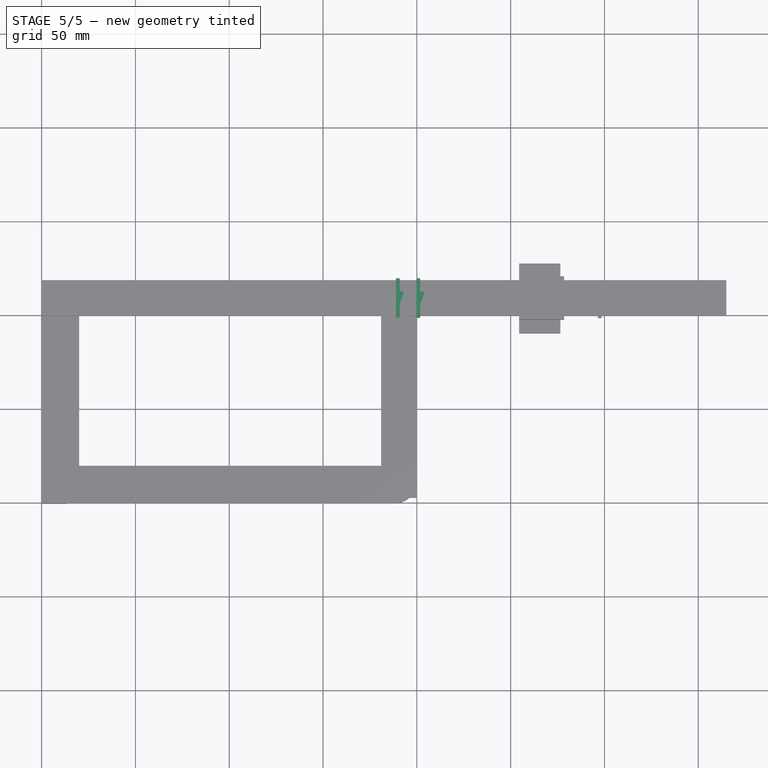
[diagram: stage 5 of 5 — top view after this stage's code; geometry added in this stage tinted green]
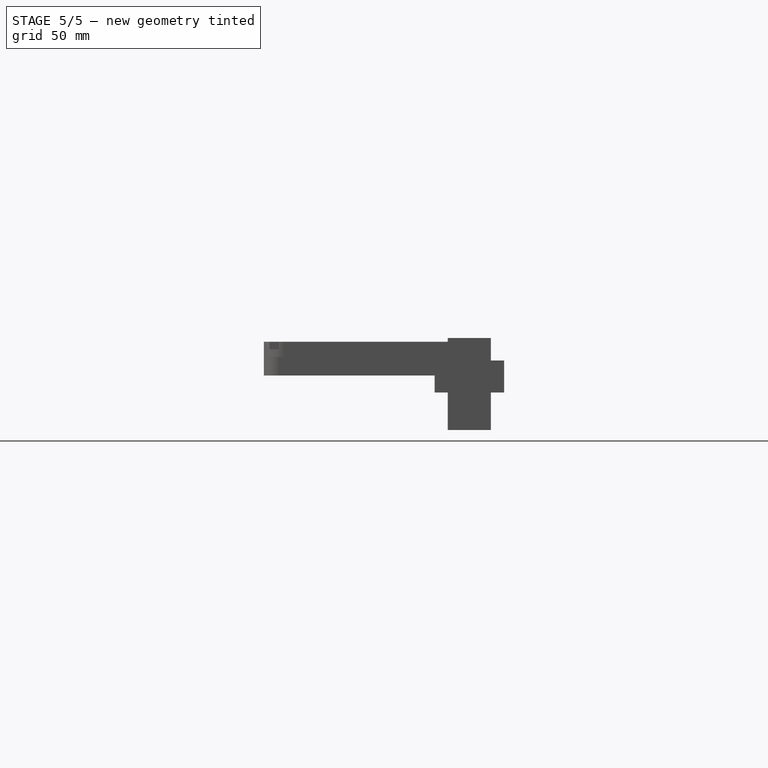
[diagram: stage 5 of 5 — right view after this stage's code; geometry added in this stage tinted green]
FEATURE [Part::Box] Box008  label="Cube008"
  AttacherType = Attacher::AttachEngine3D
  Height = 2
  Length = 77
  Placement = pos=(5.5,104,10) rot=(0,0,1;0rad)
  Width = 10
FEATURE [Part::Box] Box009  label="Cube009"
  AttacherType = Attacher::AttachEngine3D
  Height = 2
  Length = 77
  Placement = pos=(5.5,112,12) rot=(0,0,1;0rad)
  Width = 2
FEATURE [Part::Box] Box010  label="Cube010"
  AttacherType = Attacher::AttachEngine3D
  Height = 2
  Length = 77
  Placement = pos=(5.5,104,12) rot=(0,0,1;0rad)
  Width = 2
FEATURE [Part::Box] Box011  label="Cube011"
  AttacherType = Attacher::AttachEngine3D
  Height = 2
  Length = 77
  Placement = pos=(5.5,108,12) rot=(0,0,1;0rad)
  Width = 2
FEATURE [Part::MultiFuse] Fusion
  Placement = pos=(0,-100,0) rot=(0,0,1;0rad)
  Shapes = -> [Box008,Box010,Box011,Box009]
FEATURE [Sketcher::SketchObject] Sketch
  sketch-geometry (7):
    g0: Circle CenterX=45.2161 CenterY=108.799 CenterZ=0 NormalX=0 NormalY=0 NormalZ=1 AngleXU=0 Radius=3.12066
    g1: LineSegment StartX=47.9147 StartY=110.366 StartZ=0 EndX=50.0311 EndY=110.366 EndZ=0
    g2: LineSegment StartX=50.0311 StartY=110.366 StartZ=0 EndX=50.0311 EndY=107.4 EndZ=0
    g3: LineSegment StartX=50.0311 StartY=107.4 StartZ=0 EndX=47.9147 EndY=107.4 EndZ=0
    g4: LineSegment StartX=47.9147 StartY=107.4 StartZ=0 EndX=47.9147 EndY=110.366 EndZ=0
    g5: LineSegment StartX=50.0311 StartY=110.366 StartZ=0 EndX=50.0311 EndY=113.903 EndZ=0
    g6: LineSegment StartX=50.0311 StartY=107.222 StartZ=0 EndX=50.0311 EndY=103.899 EndZ=0
  constraints (13):
    c: Coincident(g1,g2)
    c: Coincident(g2,g3)
    c: Coincident(g3,g4)
    c: Coincident(g4,g1)
    c: Horizontal(g1)
    c: Horizontal(g3)
    c: Vertical(g2)
    c: Vertical(g4)
    c: PointOnObject(g1,g0)
    c: PointOnObject(g5,g1)
    c: Vertical(g5)
    c: PointOnObject(g6,g2)
    c: Vertical(g6)
FEATURE [Part::Feature] Slice_child0001001  label="Slice.009"
  shape: bbox 335.5 x 118 x 14 mm, 61 faces (baked)
FEATURE [Part::Box] Box019  label="Cube019"
  AttacherType = Attacher::AttachEngine3D
  Height = 10
  Length = 2.2
  Placement = pos=(190.9,105.1,9) rot=(0,0,1;0rad)
  Width = 6.8
FEATURE [Part::Box] Box020  label="Cube020"
  AttacherType = Attacher::AttachEngine3D
  Height = 10
  Length = 2
  Placement = pos=(188.9,98,9) rot=(0,0,1;0rad)
  Width = 21
FEATURE [Part::Feature] Shell002
  shape: bbox 7 x 20 x 6 mm, 11 faces, 0 solids (baked)
FEATURE [Part::Box] Box031  label="Cube031"
  AttacherType = Attacher::AttachEngine3D
  Height = 4
  Length = 10
  Placement = pos=(200,100,10) rot=(0,0,1;0rad)
  Width = 16
FEATURE [Part::Box] Box033  label="Cube033"
  AttacherType = Attacher::AttachEngine3D
  Height = 10
  Length = 2.5
  Placement = pos=(201.75,105.25,9) rot=(0,0,1;0rad)
  Width = 6.5
FEATURE [Part::Box] Box034  label="Cube034"
  AttacherType = Attacher::AttachEngine3D
  Height = 10
  Length = 2
  Placement = pos=(199.75,98,9) rot=(0,0,1;0rad)
  Width = 21
FEATURE [Part::Feature] Shell003
  shape: bbox 7 x 20 x 6 mm, 11 faces, 0 solids (baked)
FEATURE [Part::FeaturePython] Slice  # WARN: FeaturePython — macro-defined, semantics opaque (R4)
  Base = -> Box031
  Mode = 1
  Tolerance = 0
  Tools = -> [Shell002]
FEATURE [Part::FeaturePython] Slice_child0  label="Slice.0"  # WARN: FeaturePython — macro-defined, semantics opaque (R4)
  Base = -> Slice
  FilterType = 1
  Invert = false
  OverrideMaxVal = 0
  WindowFrom = 80
  WindowTo = 100
  items = 0
FEATURE [Part::FeaturePython] Slice_child1  label="Slice.1"  # WARN: FeaturePython — macro-defined, semantics opaque (R4)
  Base = -> Slice
  FilterType = 1
  Invert = false
  OverrideMaxVal = 0
  WindowFrom = 80
  WindowTo = 100
  items = 1
FEATURE [App::DocumentObjectGroup] GrExplode_Slice  label="Exploded Slice"
  Group = -> [Slice_child0,Slice_child1]
FEATURE [Part::FeaturePython] Slice001  # WARN: FeaturePython — macro-defined, semantics opaque (R4)
  Base = -> Slice_child0
  Mode = 1
  Tolerance = 0
  Tools = -> [Shell003]
FEATURE [Part::FeaturePython] Slice001_child0  label="Slice001.0"  # WARN: FeaturePython — macro-defined, semantics opaque (R4)
  Base = -> Slice001
  FilterType = 1
  Invert = false
  OverrideMaxVal = 0
  WindowFrom = 80
  WindowTo = 100
  items = 0
FEATURE [Part::FeaturePython] Slice001_child1  label="Slice001.1"  # WARN: FeaturePython — macro-defined, semantics opaque (R4)
  Base = -> Slice001
  FilterType = 1
  Invert = false
  OverrideMaxVal = 0
  WindowFrom = 80
  WindowTo = 100
  items = 1
FEATURE [App::DocumentObjectGroup] GrExplode_Slice001  label="Exploded Slice001"
  Group = -> [Slice001_child0,Slice001_child1]
FEATURE [Part::Feature] Shell005
  shape: bbox 7 x 20 x 6 mm, 11 faces, 0 solids (baked)
FEATURE [Part::Feature] Shell006
  Placement = pos=(197.5,-103,0) rot=(0,0,1;1.5708rad)
  shape: bbox 20 x 7 x 6 mm, 11 faces, 0 solids (baked)
FEATURE [Part::Feature] Shell007
  Placement = pos=(197.5,-103,0) rot=(0,0,1;1.5708rad)
  shape: bbox 20 x 7 x 6 mm, 11 faces, 0 solids (baked)
FEATURE [Part::Feature] Shell008
  Placement = pos=(-18.5,220,0) rot=(0,0,-1;1.5708rad)
  shape: bbox 20 x 7 x 6 mm, 11 faces, 0 solids (baked)
FEATURE [Part::Feature] Shell009
  Placement = pos=(-18.5,220,0) rot=(0,0,-1;1.5708rad)
  shape: bbox 20 x 7 x 6 mm, 11 faces, 0 solids (baked)
FEATURE [Part::FeaturePython] Slice004  # WARN: FeaturePython — macro-defined, semantics opaque (R4)
  Mode = 1
  Tolerance = 0
  Tools = -> [Shell005]
FEATURE [Part::FeaturePython] Slice004_child0  label="Slice004.0"  # WARN: FeaturePython — macro-defined, semantics opaque (R4)
  Base = -> Slice004
  FilterType = 1
  Invert = false
  OverrideMaxVal = 0
  WindowFrom = 80
  WindowTo = 100
  items = 0
FEATURE [Part::FeaturePython] Slice004_child1  label="Part 4"  # WARN: FeaturePython — macro-defined, semantics opaque (R4)
  Base = -> Slice004
  FilterType = 1
  Invert = false
  OverrideMaxVal = 0
  WindowFrom = 80
  WindowTo = 100
  items = 1
FEATURE [App::DocumentObjectGroup] GrExplode_Slice004  label="Exploded Slice004"
  Group = -> [Slice004_child0,Slice004_child1]
FEATURE [Part::FeaturePython] Slice006  # WARN: FeaturePython — macro-defined, semantics opaque (R4)
  Mode = 1
  Tolerance = 0
  Tools = -> [Shell006]
FEATURE [Part::FeaturePython] Slice006_child0  label="Slice006.0"  # WARN: FeaturePython — macro-defined, semantics opaque (R4)
  Base = -> Slice006
  FilterType = 1
  Invert = false
  OverrideMaxVal = 0
  WindowFrom = 80
  WindowTo = 100
  items = 0
FEATURE [Part::FeaturePython] Slice013_child0  label="Slice013.0"  # WARN: FeaturePython — macro-defined, semantics opaque (R4)
  Base = -> Slice013
  FilterType = 1
  Invert = false
  OverrideMaxVal = 0
  WindowFrom = 80
  WindowTo = 100
  items = 0
FEATURE [Part::FeaturePython] Slice016_child0  label="Slice016.0"  # WARN: FeaturePython — macro-defined, semantics opaque (R4)
  Base = -> Slice016
  FilterType = 1
  Invert = false
  OverrideMaxVal = 0
  WindowFrom = 80
  WindowTo = 100
  items = 0
FEATURE [Part::Cylinder] Cylinder009
  Angle = 360
  AttacherType = Attacher::AttachEngine3D
  Height = 4
  Placement = pos=(4,14,8) rot=(0,0,1;0rad)
  Radius = 1.5
FEATURE [Part::Cylinder] Cylinder010
  Angle = 360
  AttacherType = Attacher::AttachEngine3D
  Height = 4
  Placement = pos=(4,4,8) rot=(0,0,1;0rad)
  Radius = 1.5
FEATURE [Part::Cylinder] Cylinder011
  Angle = 360
  AttacherType = Attacher::AttachEngine3D
  Height = 4
  Placement = pos=(16,14,8) rot=(0,0,1;0rad)
  Radius = 1.5
FEATURE [Part::Cylinder] Cylinder015
  Angle = 360
  AttacherType = Attacher::AttachEngine3D
  Height = 4
  Placement = pos=(4,104,8) rot=(0,0,1;0rad)
  Radius = 1.5
FEATURE [Part::Cylinder] Cylinder016
  Angle = 360
  AttacherType = Attacher::AttachEngine3D
  Height = 4
  Placement = pos=(4,114,8) rot=(0,0,1;0rad)
  Radius = 1.5
FEATURE [Part::Cylinder] Cylinder017
  Angle = 360
  AttacherType = Attacher::AttachEngine3D
  Height = 4
  Placement = pos=(16,104,8) rot=(0,0,1;0rad)
  Radius = 1.5
FEATURE [Part::FeaturePython] Connect001006  # WARN: FeaturePython — macro-defined, semantics opaque (R4)
  Objects = -> [Cylinder017,Cylinder016,Cylinder015,Slice016_child0]
  Tolerance = 0
FEATURE [Part::Box] Box044  label="Joint Strengthening Pad"
  AttacherType = Attacher::AttachEngine3D
  Height = 4
  Length = 50
  Placement = pos=(175,102,14) rot=(0,0,1;0rad)
  Width = 4.8
FEATURE [Part::FeaturePython] Slice025_child0  label="Slice025.0"  # WARN: FeaturePython — macro-defined, semantics opaque (R4)
  Base = -> Slice025
  FilterType = 1
  Invert = false
  OverrideMaxVal = 0
  WindowFrom = 80
  WindowTo = 100
  items = 0
FEATURE [Part::FeaturePython] Slice025_child1  label="Slice025.1"  # WARN: FeaturePython — macro-defined, semantics opaque (R4)
  Base = -> Slice025
  FilterType = 1
  Invert = false
  OverrideMaxVal = 0
  WindowFrom = 80
  WindowTo = 100
  items = 1
FEATURE [Part::FeaturePython] Slice025_child2  label="Slice025.2"  # WARN: FeaturePython — macro-defined, semantics opaque (R4)
  Base = -> Slice025
  FilterType = 1
  Invert = false
  OverrideMaxVal = 0
  WindowFrom = 80
  WindowTo = 100
  items = 2
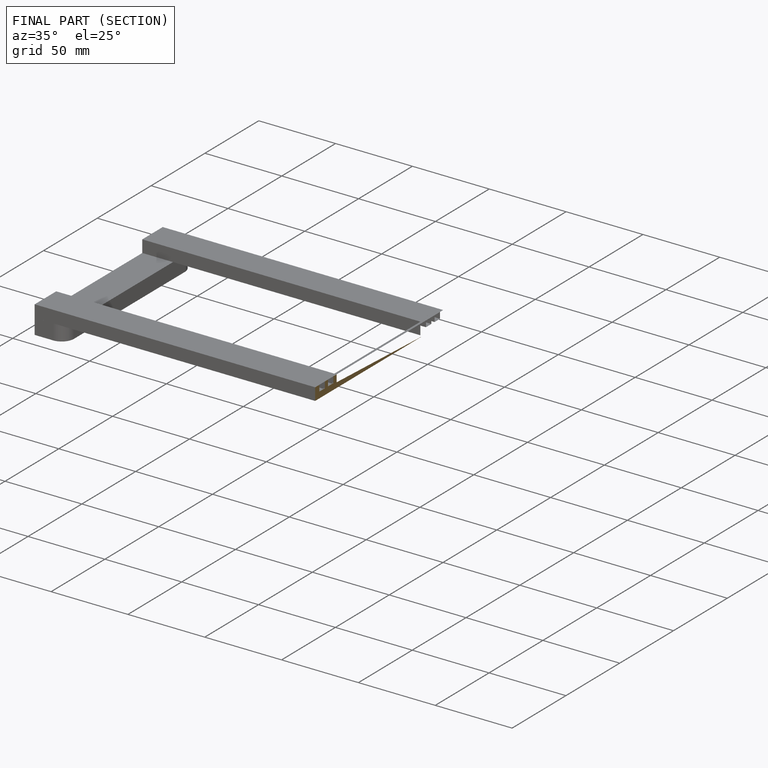
[diagram: finished part — half-section view (interior)]
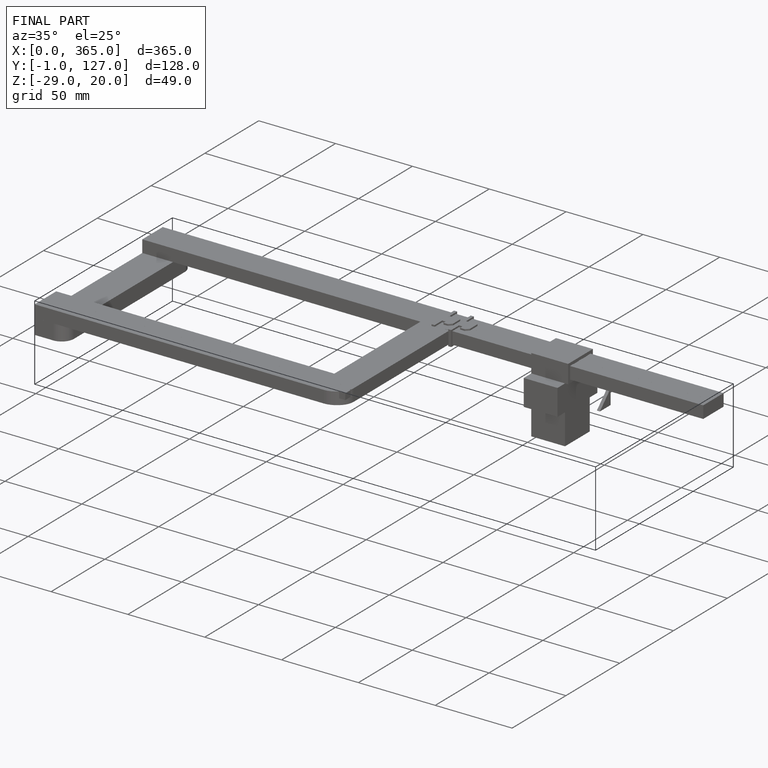
[diagram: finished part — iso view with bounding-box wireframe]
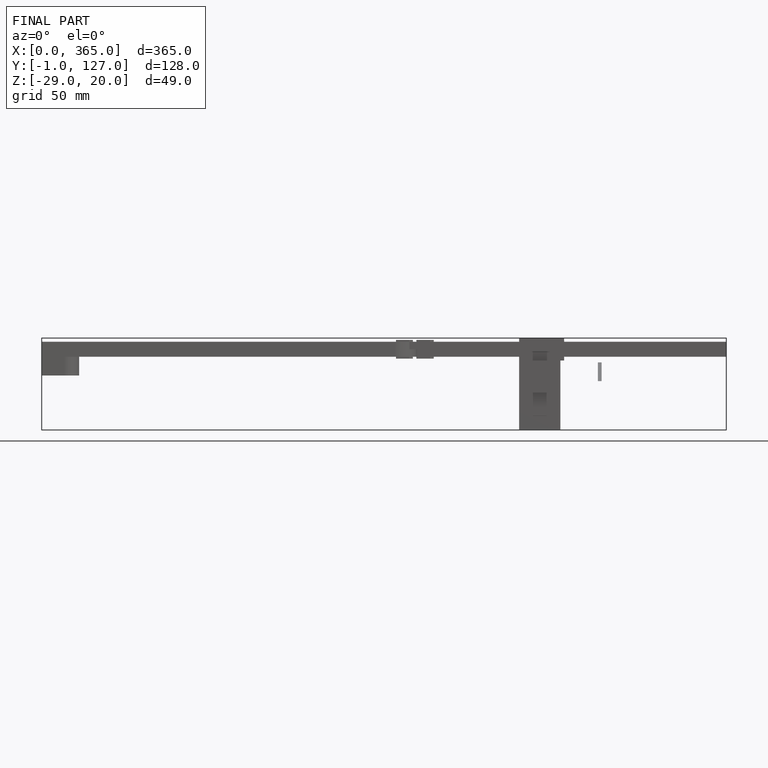
[diagram: finished part — front view with bounding-box wireframe]
